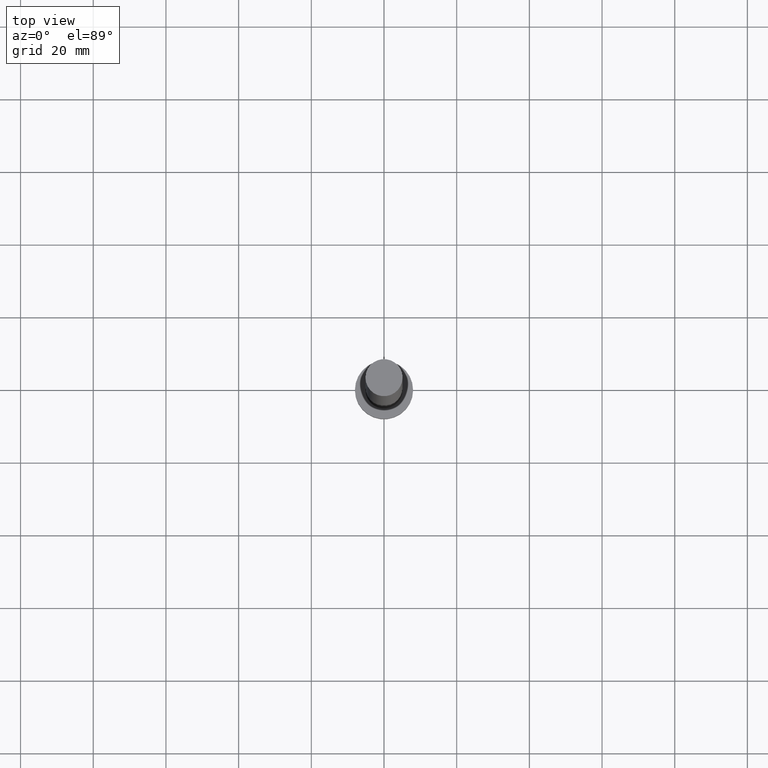
[diagram: clean part render]
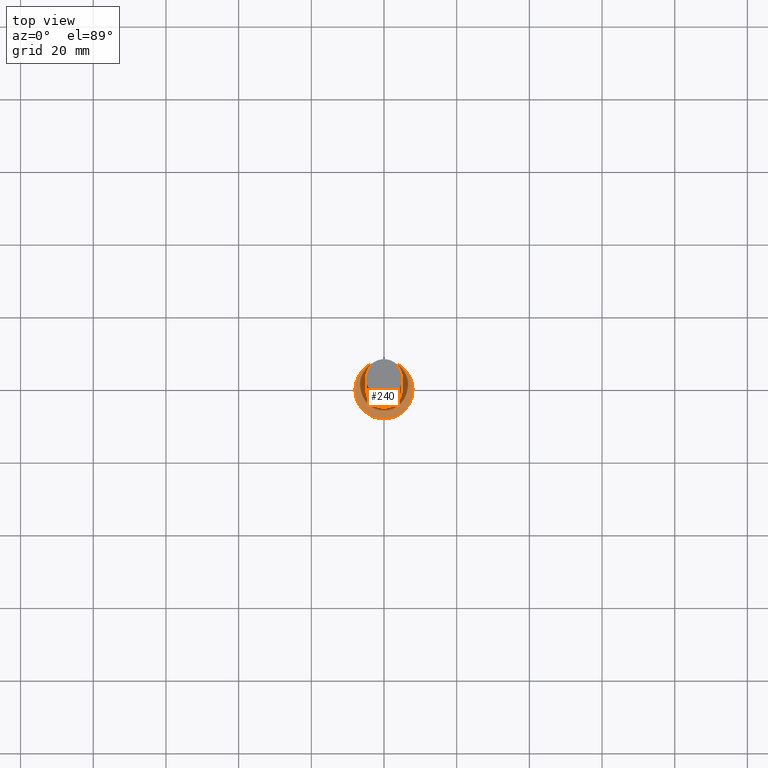
[diagram: same view with one face highlighted and labeled with its STEP entity id]
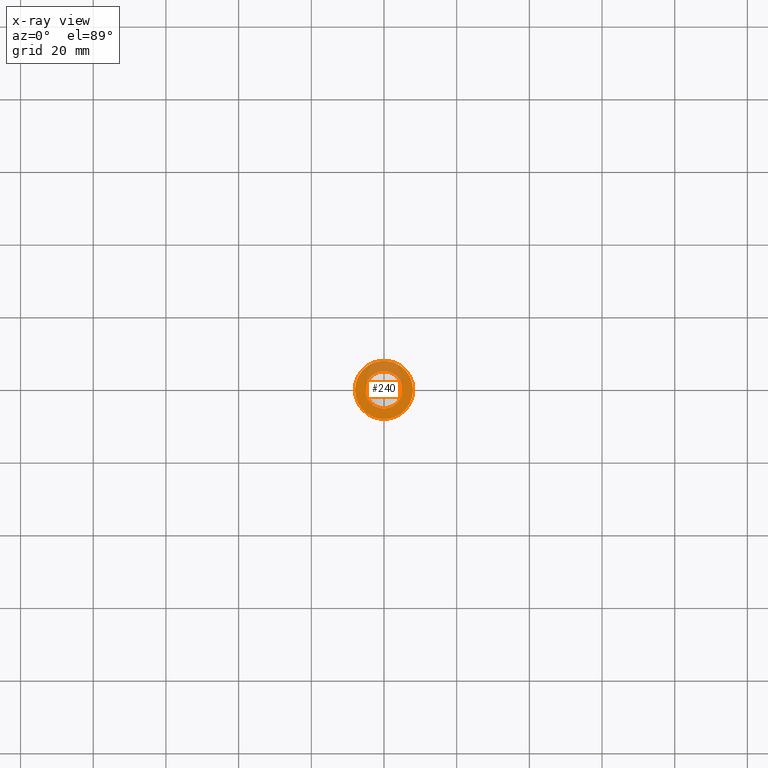
[diagram: x-ray of the same camera — body ghosted, the highlighted face saturated]
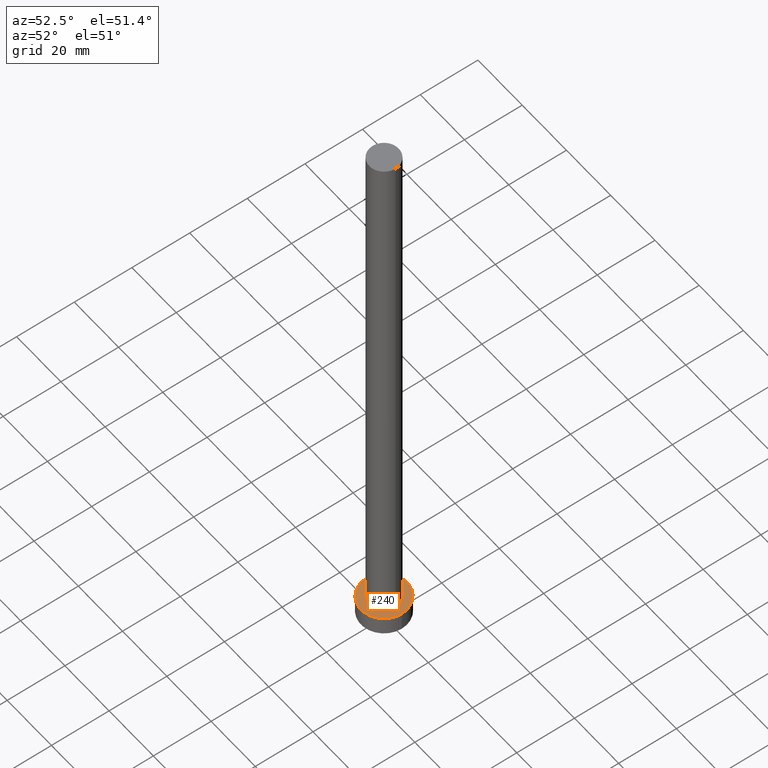
[diagram: same view with one face highlighted and labeled with its STEP entity id]
A machine part, top view. The second image highlights one B-rep face of the part: STEP entity #240.
The next image is the same camera in x-ray: the body ghosted, the highlighted face saturated — about 27% of this face is hidden behind the body in this view.
A second angle (auxiliary view) of the same face is appended — the face is thin or edge-on in the first view.
In plain terms, the highlighted planar face has unit normal (0, 0, 1).
Its self-contained STEP definition (entity closure, byte-faithful):
#2 = CARTESIAN_POINT ( 'NONE',  ( 0.000000000000000000, 0.000000000000000000, 6.500000000000000000 ) ) ;
#3 = AXIS2_PLACEMENT_3D ( 'NONE', #119, #65, #142 ) ;
#5 = CARTESIAN_POINT ( 'NONE',  ( 8.000000000000000000, 9.797174393178823685E-16, 6.500000000000000000 ) ) ;
#9 = ORIENTED_EDGE ( 'NONE', *, *, #104, .T. ) ;
#17 = DIRECTION ( 'NONE',  ( 1.000000000000000000, 0.000000000000000000, 0.000000000000000000 ) ) ;
#19 = DIRECTION ( 'NONE',  ( 1.000000000000000000, 0.000000000000000000, 0.000000000000000000 ) ) ;
#21 = FACE_BOUND ( 'NONE', #73, .T. ) ;
#23 = AXIS2_PLACEMENT_3D ( 'NONE', #120, #255, #19 ) ;
#29 = VERTEX_POINT ( 'NONE', #5 ) ;
#43 = ORIENTED_EDGE ( 'NONE', *, *, #192, .F. ) ;
#49 = FACE_OUTER_BOUND ( 'NONE', #62, .T. ) ;
#56 = DIRECTION ( 'NONE',  ( 0.000000000000000000, 0.000000000000000000, 1.000000000000000000 ) ) ;
#62 = EDGE_LOOP ( 'NONE', ( #9, #94 ) ) ;
#65 = DIRECTION ( 'NONE',  ( 0.000000000000000000, 0.000000000000000000, 1.000000000000000000 ) ) ;
#73 = EDGE_LOOP ( 'NONE', ( #149, #43 ) ) ;
#92 = DIRECTION ( 'NONE',  ( 1.000000000000000000, 0.000000000000000000, -0.000000000000000000 ) ) ;
#94 = ORIENTED_EDGE ( 'NONE', *, *, #212, .T. ) ;
#100 = CIRCLE ( 'NONE', #3, 8.000000000000000000 ) ;
#104 = EDGE_CURVE ( 'NONE', #132, #29, #203, .T. ) ;
#107 = PLANE ( 'NONE',  #189 ) ;
#111 = AXIS2_PLACEMENT_3D ( 'NONE', #247, #56, #134 ) ;
#117 = CIRCLE ( 'NONE', #23, 5.100000000000001421 ) ;
#118 = CARTESIAN_POINT ( 'NONE',  ( 0.000000000000000000, 0.000000000000000000, 6.500000000000000000 ) ) ;
#119 = CARTESIAN_POINT ( 'NONE',  ( 0.000000000000000000, 0.000000000000000000, 6.500000000000000000 ) ) ;
#120 = CARTESIAN_POINT ( 'NONE',  ( 0.000000000000000000, 0.000000000000000000, 6.500000000000000000 ) ) ;
#132 = VERTEX_POINT ( 'NONE', #208 ) ;
#134 = DIRECTION ( 'NONE',  ( 1.000000000000000000, 0.000000000000000000, 0.000000000000000000 ) ) ;
#142 = DIRECTION ( 'NONE',  ( 1.000000000000000000, 0.000000000000000000, 0.000000000000000000 ) ) ;
#145 = CARTESIAN_POINT ( 'NONE',  ( -5.100000000000001421, 0.000000000000000000, 6.500000000000000000 ) ) ;
#149 = ORIENTED_EDGE ( 'NONE', *, *, #215, .F. ) ;
#179 = DIRECTION ( 'NONE',  ( 0.000000000000000000, 0.000000000000000000, 1.000000000000000000 ) ) ;
#189 = AXIS2_PLACEMENT_3D ( 'NONE', #2, #179, #92 ) ;
#191 = DIRECTION ( 'NONE',  ( 0.000000000000000000, 0.000000000000000000, 1.000000000000000000 ) ) ;
#192 = EDGE_CURVE ( 'NONE', #238, #225, #194, .T. ) ;
#194 = CIRCLE ( 'NONE', #229, 5.100000000000001421 ) ;
#196 = CARTESIAN_POINT ( 'NONE',  ( 5.100000000000001421, 6.245698675651502811E-16, 6.500000000000000000 ) ) ;
#203 = CIRCLE ( 'NONE', #111, 8.000000000000000000 ) ;
#208 = CARTESIAN_POINT ( 'NONE',  ( -8.000000000000000000, 0.000000000000000000, 6.500000000000000000 ) ) ;
#212 = EDGE_CURVE ( 'NONE', #29, #132, #100, .T. ) ;
#215 = EDGE_CURVE ( 'NONE', #225, #238, #117, .T. ) ;
#225 = VERTEX_POINT ( 'NONE', #145 ) ;
#229 = AXIS2_PLACEMENT_3D ( 'NONE', #118, #191, #17 ) ;
#238 = VERTEX_POINT ( 'NONE', #196 ) ;
#240 = ADVANCED_FACE ( 'NONE', ( #21, #49 ), #107, .T. ) ;
#247 = CARTESIAN_POINT ( 'NONE',  ( 0.000000000000000000, 0.000000000000000000, 6.500000000000000000 ) ) ;
#255 = DIRECTION ( 'NONE',  ( 0.000000000000000000, 0.000000000000000000, 1.000000000000000000 ) ) ;